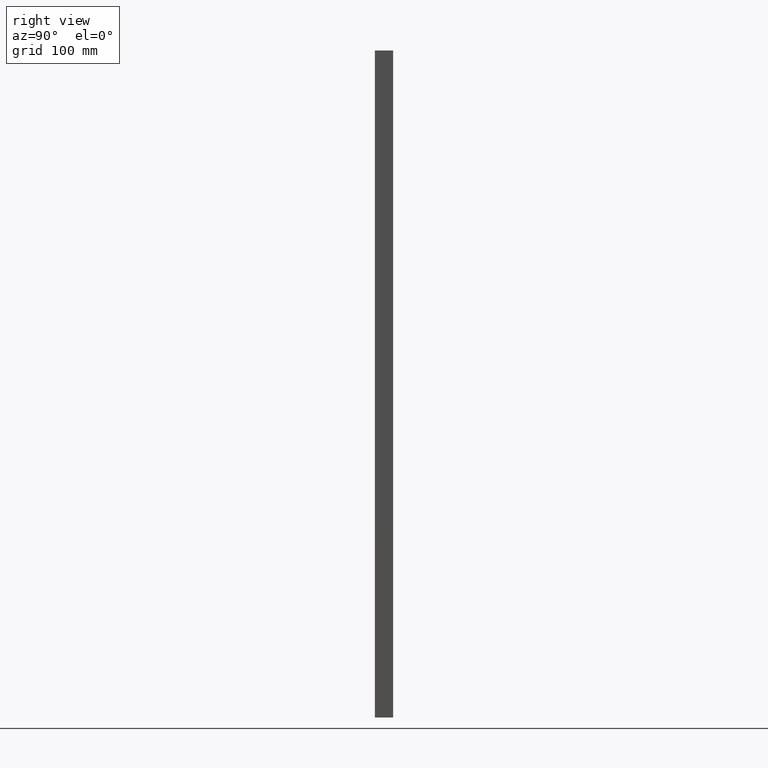
[diagram: clean part render]
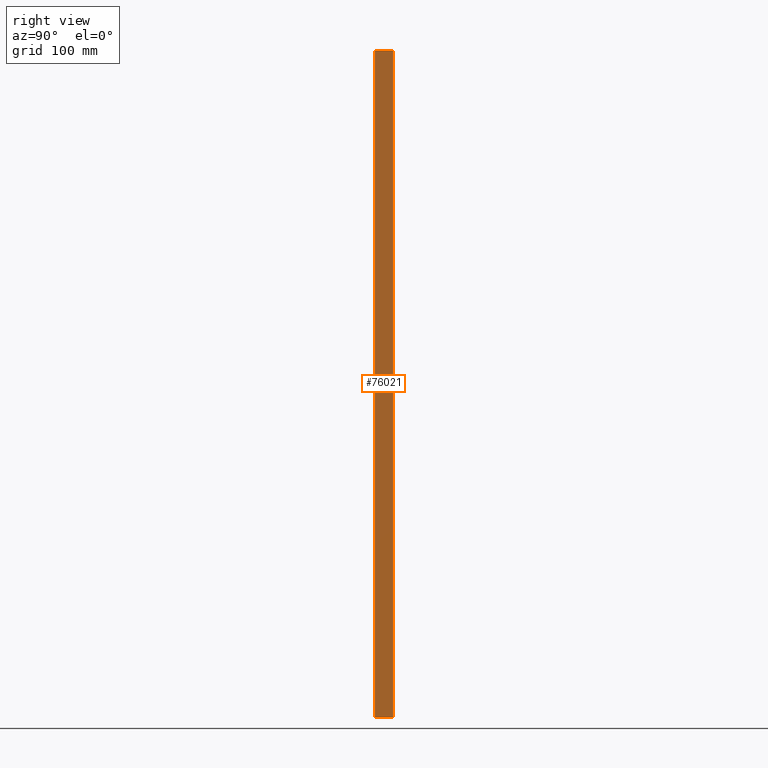
[diagram: same view with one face highlighted and labeled with its STEP entity id]
A machine part, right view. The second image highlights one B-rep face of the part: STEP entity #76021.
In plain terms, the highlighted planar face has unit normal (1, -0, -0).
Its self-contained STEP definition (entity closure, byte-faithful):
#1238 = ORIENTED_EDGE ( 'NONE', *, *, #52201, .T. ) ;
#1932 = EDGE_LOOP ( 'NONE', ( #25364, #1238, #64218, #69961 ) ) ;
#3803 = PLANE ( 'NONE',  #59430 ) ;
#6743 = EDGE_CURVE ( 'NONE', #8822, #65818, #53644, .T. ) ;
#8822 = VERTEX_POINT ( 'NONE', #37763 ) ;
#9963 = LINE ( 'NONE', #27864, #12842 ) ;
#10628 = CARTESIAN_POINT ( 'NONE',  ( 489.9999999999997700, 15.00000000000000000, -1090.000000000000000 ) ) ;
#12842 = VECTOR ( 'NONE', #52692, 1000.000000000000000 ) ;
#18011 = DIRECTION ( 'NONE',  ( 3.061616997868383100E-016, 1.000000000000000000, -3.061616997868383100E-016 ) ) ;
#18915 = VECTOR ( 'NONE', #18011, 1000.000000000000000 ) ;
#22362 = DIRECTION ( 'NONE',  ( 1.000000000000000000, -3.061616997868383100E-016, -1.018553233601060900E-016 ) ) ;
#22999 = DIRECTION ( 'NONE',  ( 1.018553233601060900E-016, 0.0000000000000000000, 1.000000000000000000 ) ) ;
#25364 = ORIENTED_EDGE ( 'NONE', *, *, #70845, .T. ) ;
#25964 = CARTESIAN_POINT ( 'NONE',  ( 489.9999999999997700, 15.00000000000000000, -1090.000000000000000 ) ) ;
#27864 = CARTESIAN_POINT ( 'NONE',  ( 489.9999999999997200, -15.00000000000000000, -1089.999999999999800 ) ) ;
#28134 = FACE_OUTER_BOUND ( 'NONE', #1932, .T. ) ;
#28200 = CARTESIAN_POINT ( 'NONE',  ( 489.9999999999999400, 15.00000000000000000, 1.665334536937734800E-013 ) ) ;
#31314 = VECTOR ( 'NONE', #22999, 1000.000000000000000 ) ;
#34708 = CARTESIAN_POINT ( 'NONE',  ( 489.9999999999999400, 14.99999999999986900, -1090.000000000000000 ) ) ;
#37763 = CARTESIAN_POINT ( 'NONE',  ( 489.9999999999997200, -15.00000000000000000, -1089.999999999999800 ) ) ;
#42853 = EDGE_CURVE ( 'NONE', #8822, #73813, #9963, .T. ) ;
#52201 = EDGE_CURVE ( 'NONE', #73518, #73813, #64691, .T. ) ;
#52692 = DIRECTION ( 'NONE',  ( 1.018553233601060900E-016, 0.0000000000000000000, 1.000000000000000000 ) ) ;
#53644 = LINE ( 'NONE', #79439, #18915 ) ;
#55655 = CARTESIAN_POINT ( 'NONE',  ( 489.9999999999997700, -15.00000000000000000, -2.220446049250313100E-013 ) ) ;
#57927 = VECTOR ( 'NONE', #58970, 1000.000000000000000 ) ;
#58970 = DIRECTION ( 'NONE',  ( -3.061616997868383600E-016, -1.000000000000000000, -3.061616997868382600E-016 ) ) ;
#59430 = AXIS2_PLACEMENT_3D ( 'NONE', #34708, #22362, #65426 ) ;
#64218 = ORIENTED_EDGE ( 'NONE', *, *, #42853, .F. ) ;
#64691 = LINE ( 'NONE', #71624, #57927 ) ;
#65426 = DIRECTION ( 'NONE',  ( 3.061616997868383100E-016, 1.000000000000000000, 0.0000000000000000000 ) ) ;
#65818 = VERTEX_POINT ( 'NONE', #25964 ) ;
#67016 = LINE ( 'NONE', #10628, #31314 ) ;
#69961 = ORIENTED_EDGE ( 'NONE', *, *, #6743, .T. ) ;
#70845 = EDGE_CURVE ( 'NONE', #65818, #73518, #67016, .T. ) ;
#71624 = CARTESIAN_POINT ( 'NONE',  ( 490.0000000000000600, 14.99999999999953600, 0.0000000000000000000 ) ) ;
#73518 = VERTEX_POINT ( 'NONE', #28200 ) ;
#73813 = VERTEX_POINT ( 'NONE', #55655 ) ;
#76021 = ADVANCED_FACE ( 'NONE', ( #28134 ), #3803, .T. ) ;
#79439 = CARTESIAN_POINT ( 'NONE',  ( 489.9999999999999400, 14.99999999999986900, -1090.000000000000000 ) ) ;